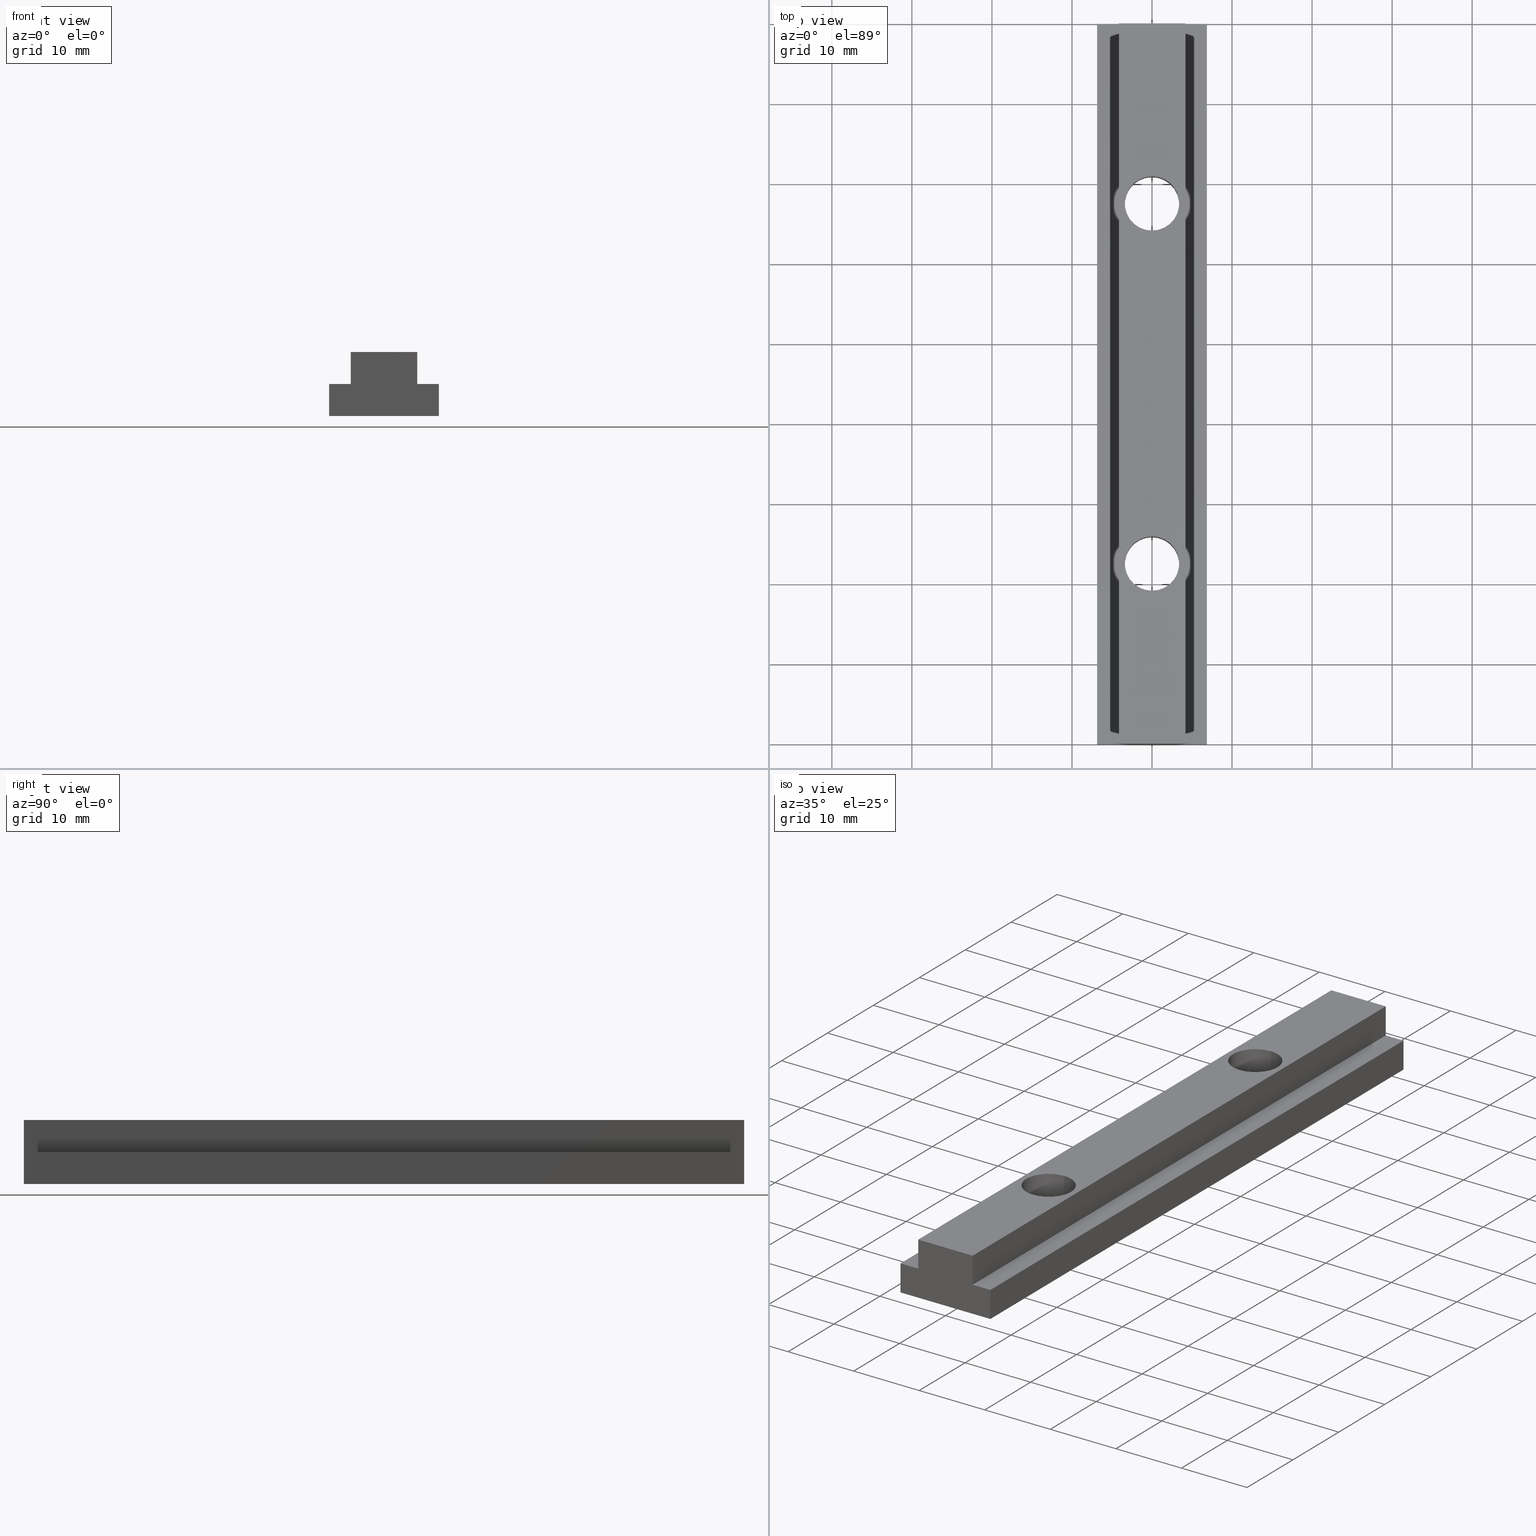
[diagram: canonical four-view strip — front | top / right | iso, engineering-drawing reading convention]
A machine part, canonical four-view strip (front | top / right | iso — engineering-drawing reading convention). The complete STEP part file that produces these views, byte-faithful:
ISO-10303-21;
HEADER;
/****************************************************************
 * Generated by software with PDE/Lib inside                    *
 * PDElib Version v4.4, created Mon 02/23/2004                  *
 * International Technegroup Inc. (www.iti-oh.com)              *
 ****************************************************************/
FILE_DESCRIPTION(('STEP AP203'),'2;1');
FILE_NAME('14.303.00.stp','2011-02-14T08:44:29',(''),(''),'2009.3.110','THINKDESIGN','');
FILE_SCHEMA(('CONFIG_CONTROL_DESIGN'));
ENDSEC;
DATA;
#2=CARTESIAN_POINT('',(0.0,22.500000000000004,8.000000009999994));
#3=DIRECTION('',(0.0,-6.123234E-017,-1.0));
#4=DIRECTION('',(1.0,0.0,0.0));
#5=AXIS2_PLACEMENT_3D('',#2,#3,#4);
#6=CYLINDRICAL_SURFACE('',#5,3.400000000000001);
#7=CARTESIAN_POINT('',(0.0,25.899999999999999,7.999999999999989));
#8=VERTEX_POINT('',#7);
#9=CARTESIAN_POINT('',(0.0,19.100000000000001,7.999999999999989));
#10=VERTEX_POINT('',#9);
#11=CARTESIAN_POINT('',(0.0,22.500000000000000,7.999999999999989));
#12=DIRECTION('',(0.0,6.123234E-017,1.0));
#13=DIRECTION('',(0.0,-1.0,6.123234E-017));
#14=AXIS2_PLACEMENT_3D('',#11,#12,#13);
#15=CIRCLE('',#14,3.400000000000001);
#16=EDGE_CURVE('',#8,#10,#15,.T.);
#17=ORIENTED_EDGE('',*,*,#16,.T.);
#18=CARTESIAN_POINT('',(0.0,19.100000000000001,-1.776357E-015));
#19=VERTEX_POINT('',#18);
#20=CARTESIAN_POINT('',(0.0,19.100000000000001,7.999999999999993));
#21=DIRECTION('',(0.0,0.0,-1.0));
#22=VECTOR('',#21,7.999999999999993);
#23=LINE('',#20,#22);
#24=EDGE_CURVE('',#10,#19,#23,.T.);
#25=ORIENTED_EDGE('',*,*,#24,.T.);
#26=CARTESIAN_POINT('',(0.0,25.899999999999999,-1.776357E-015));
#27=VERTEX_POINT('',#26);
#28=CARTESIAN_POINT('',(0.0,22.500000000000000,-1.776357E-015));
#29=DIRECTION('',(0.0,-6.123234E-017,-1.0));
#30=DIRECTION('',(0.0,1.0,-6.123234E-017));
#31=AXIS2_PLACEMENT_3D('',#28,#29,#30);
#32=CIRCLE('',#31,3.400000000000001);
#33=EDGE_CURVE('',#19,#27,#32,.T.);
#34=ORIENTED_EDGE('',*,*,#33,.T.);
#35=CARTESIAN_POINT('',(0.0,25.899999999999999,7.999999999999993));
#36=DIRECTION('',(0.0,0.0,-1.0));
#37=VECTOR('',#36,7.999999999999993);
#38=LINE('',#35,#37);
#39=EDGE_CURVE('',#8,#27,#38,.T.);
#40=ORIENTED_EDGE('',*,*,#39,.F.);
#41=EDGE_LOOP('',(#17,#25,#34,#40));
#42=FACE_OUTER_BOUND('',#41,.T.);
#43=ADVANCED_FACE('',(#42),#6,.F.);
#44=CARTESIAN_POINT('',(0.0,67.500000000000000,8.000000009999994));
#45=DIRECTION('',(0.0,-6.123234E-017,-1.0));
#46=DIRECTION('',(1.0,0.0,0.0));
#47=AXIS2_PLACEMENT_3D('',#44,#45,#46);
#48=CYLINDRICAL_SURFACE('',#47,3.400000000000001);
#49=CARTESIAN_POINT('',(0.0,70.900000000000006,7.999999999999986));
#50=VERTEX_POINT('',#49);
#51=CARTESIAN_POINT('',(0.0,64.100000000000023,7.999999999999986));
#52=VERTEX_POINT('',#51);
#53=CARTESIAN_POINT('',(0.0,67.500000000000000,7.999999999999986));
#54=DIRECTION('',(0.0,6.123234E-017,1.0));
#55=DIRECTION('',(0.0,-1.0,6.123234E-017));
#56=AXIS2_PLACEMENT_3D('',#53,#54,#55);
#57=CIRCLE('',#56,3.400000000000001);
#58=EDGE_CURVE('',#50,#52,#57,.T.);
#59=ORIENTED_EDGE('',*,*,#58,.T.);
#60=CARTESIAN_POINT('',(0.0,64.100000000000023,-3.552714E-015));
#61=VERTEX_POINT('',#60);
#62=CARTESIAN_POINT('',(0.0,64.100000000000023,7.999999999999989));
#63=DIRECTION('',(0.0,0.0,-1.0));
#64=VECTOR('',#63,7.999999999999993);
#65=LINE('',#62,#64);
#66=EDGE_CURVE('',#52,#61,#65,.T.);
#67=ORIENTED_EDGE('',*,*,#66,.T.);
#68=CARTESIAN_POINT('',(0.0,70.900000000000006,-3.552714E-015));
#69=VERTEX_POINT('',#68);
#70=CARTESIAN_POINT('',(0.0,67.500000000000000,-3.552714E-015));
#71=DIRECTION('',(0.0,-6.123234E-017,-1.0));
#72=DIRECTION('',(0.0,1.0,-6.123234E-017));
#73=AXIS2_PLACEMENT_3D('',#70,#71,#72);
#74=CIRCLE('',#73,3.400000000000001);
#75=EDGE_CURVE('',#61,#69,#74,.T.);
#76=ORIENTED_EDGE('',*,*,#75,.T.);
#77=CARTESIAN_POINT('',(0.0,70.900000000000006,7.999999999999989));
#78=DIRECTION('',(0.0,0.0,-1.0));
#79=VECTOR('',#78,7.999999999999993);
#80=LINE('',#77,#79);
#81=EDGE_CURVE('',#50,#69,#80,.T.);
#82=ORIENTED_EDGE('',*,*,#81,.F.);
#83=EDGE_LOOP('',(#59,#67,#76,#82));
#84=FACE_OUTER_BOUND('',#83,.T.);
#85=ADVANCED_FACE('',(#84),#48,.F.);
#86=CARTESIAN_POINT('',(-6.849999999999994,94.500000000000000,-0.200000000000005));
#87=DIRECTION('',(-1.0,0.0,0.0));
#88=DIRECTION('',(0.0,-1.0,0.0));
#89=AXIS2_PLACEMENT_3D('',#86,#87,#88);
#90=PLANE('',#89);
#91=CARTESIAN_POINT('',(-6.849999999999994,0.0,4.0));
#92=VERTEX_POINT('',#91);
#93=CARTESIAN_POINT('',(-6.849999999999994,0.0,0.0));
#94=VERTEX_POINT('',#93);
#95=CARTESIAN_POINT('',(-6.849999999999994,0.0,4.0));
#96=DIRECTION('',(0.0,0.0,-1.0));
#97=VECTOR('',#96,4.0);
#98=LINE('',#95,#97);
#99=EDGE_CURVE('',#92,#94,#98,.T.);
#100=ORIENTED_EDGE('',*,*,#99,.F.);
#101=CARTESIAN_POINT('',(-6.849999999999994,90.0,3.999999999999995));
#102=VERTEX_POINT('',#101);
#103=CARTESIAN_POINT('',(-6.849999999999994,90.0,3.999999999999995));
#104=DIRECTION('',(0.0,-1.0,0.0));
#105=VECTOR('',#104,90.0);
#106=LINE('',#103,#105);
#107=EDGE_CURVE('',#102,#92,#106,.T.);
#108=ORIENTED_EDGE('',*,*,#107,.F.);
#109=CARTESIAN_POINT('',(-6.849999999999994,90.0,-5.329071E-015));
#110=VERTEX_POINT('',#109);
#111=CARTESIAN_POINT('',(-6.849999999999994,90.0,3.999999999999995));
#112=DIRECTION('',(0.0,0.0,-1.0));
#113=VECTOR('',#112,4.0);
#114=LINE('',#111,#113);
#115=EDGE_CURVE('',#102,#110,#114,.T.);
#116=ORIENTED_EDGE('',*,*,#115,.T.);
#117=CARTESIAN_POINT('',(-6.849999999999994,90.0,-5.329071E-015));
#118=DIRECTION('',(0.0,-1.0,0.0));
#119=VECTOR('',#118,90.0);
#120=LINE('',#117,#119);
#121=EDGE_CURVE('',#110,#94,#120,.T.);
#122=ORIENTED_EDGE('',*,*,#121,.T.);
#123=EDGE_LOOP('',(#100,#108,#116,#122));
#124=FACE_OUTER_BOUND('',#123,.T.);
#125=ADVANCED_FACE('',(#124),#90,.T.);
#126=CARTESIAN_POINT('',(-7.534999999999997,-4.499999999999999,0.0));
#127=DIRECTION('',(0.0,0.0,-1.0));
#128=DIRECTION('',(0.0,1.0,0.0));
#129=AXIS2_PLACEMENT_3D('',#126,#127,#128);
#130=PLANE('',#129);
#131=CARTESIAN_POINT('',(6.849999999999998,0.0,0.0));
#132=VERTEX_POINT('',#131);
#133=CARTESIAN_POINT('',(-6.849999999999994,0.0,0.0));
#134=DIRECTION('',(1.0,0.0,0.0));
#135=VECTOR('',#134,13.699999999999996);
#136=LINE('',#133,#135);
#137=EDGE_CURVE('',#94,#132,#136,.T.);
#138=ORIENTED_EDGE('',*,*,#137,.F.);
#139=ORIENTED_EDGE('',*,*,#121,.F.);
#140=CARTESIAN_POINT('',(6.849999999999998,90.0,-5.329071E-015));
#141=VERTEX_POINT('',#140);
#142=CARTESIAN_POINT('',(-6.849999999999994,90.0,-5.329071E-015));
#143=DIRECTION('',(1.0,0.0,0.0));
#144=VECTOR('',#143,13.699999999999996);
#145=LINE('',#142,#144);
#146=EDGE_CURVE('',#110,#141,#145,.T.);
#147=ORIENTED_EDGE('',*,*,#146,.T.);
#148=CARTESIAN_POINT('',(6.849999999999998,90.0,-5.329071E-015));
#149=DIRECTION('',(0.0,-1.0,0.0));
#150=VECTOR('',#149,90.0);
#151=LINE('',#148,#150);
#152=EDGE_CURVE('',#141,#132,#151,.T.);
#153=ORIENTED_EDGE('',*,*,#152,.T.);
#154=EDGE_LOOP('',(#138,#139,#147,#153));
#155=FACE_OUTER_BOUND('',#154,.T.);
#156=CARTESIAN_POINT('',(0.0,67.500000000000000,-3.552714E-015));
#157=DIRECTION('',(0.0,-6.123234E-017,-1.0));
#158=DIRECTION('',(0.0,1.0,-6.123234E-017));
#159=AXIS2_PLACEMENT_3D('',#156,#157,#158);
#160=CIRCLE('',#159,3.400000000000001);
#161=EDGE_CURVE('',#69,#61,#160,.T.);
#162=ORIENTED_EDGE('',*,*,#161,.F.);
#163=ORIENTED_EDGE('',*,*,#75,.F.);
#164=EDGE_LOOP('',(#162,#163));
#165=FACE_BOUND('',#164,.T.);
#166=CARTESIAN_POINT('',(0.0,22.500000000000000,-1.776357E-015));
#167=DIRECTION('',(0.0,-6.123234E-017,-1.0));
#168=DIRECTION('',(0.0,1.0,-6.123234E-017));
#169=AXIS2_PLACEMENT_3D('',#166,#167,#168);
#170=CIRCLE('',#169,3.400000000000001);
#171=EDGE_CURVE('',#27,#19,#170,.T.);
#172=ORIENTED_EDGE('',*,*,#171,.F.);
#173=ORIENTED_EDGE('',*,*,#33,.F.);
#174=EDGE_LOOP('',(#172,#173));
#175=FACE_BOUND('',#174,.T.);
#176=ADVANCED_FACE('',(#155,#165,#175),#130,.T.);
#177=CARTESIAN_POINT('',(6.849999999999998,-4.499999999999999,-0.199999999999999));
#178=DIRECTION('',(1.0,0.0,0.0));
#179=DIRECTION('',(0.0,1.0,0.0));
#180=AXIS2_PLACEMENT_3D('',#177,#178,#179);
#181=PLANE('',#180);
#182=CARTESIAN_POINT('',(6.849999999999998,0.0,4.0));
#183=VERTEX_POINT('',#182);
#184=CARTESIAN_POINT('',(6.849999999999998,0.0,0.0));
#185=DIRECTION('',(0.0,0.0,1.0));
#186=VECTOR('',#185,4.0);
#187=LINE('',#184,#186);
#188=EDGE_CURVE('',#132,#183,#187,.T.);
#189=ORIENTED_EDGE('',*,*,#188,.F.);
#190=ORIENTED_EDGE('',*,*,#152,.F.);
#191=CARTESIAN_POINT('',(6.849999999999998,90.0,3.999999999999995));
#192=VERTEX_POINT('',#191);
#193=CARTESIAN_POINT('',(6.849999999999998,90.0,-5.329071E-015));
#194=DIRECTION('',(0.0,0.0,1.0));
#195=VECTOR('',#194,4.0);
#196=LINE('',#193,#195);
#197=EDGE_CURVE('',#141,#192,#196,.T.);
#198=ORIENTED_EDGE('',*,*,#197,.T.);
#199=CARTESIAN_POINT('',(6.849999999999998,90.0,3.999999999999995));
#200=DIRECTION('',(0.0,-1.0,0.0));
#201=VECTOR('',#200,90.0);
#202=LINE('',#199,#201);
#203=EDGE_CURVE('',#192,#183,#202,.T.);
#204=ORIENTED_EDGE('',*,*,#203,.T.);
#205=EDGE_LOOP('',(#189,#190,#198,#204));
#206=FACE_OUTER_BOUND('',#205,.T.);
#207=ADVANCED_FACE('',(#206),#181,.T.);
#208=CARTESIAN_POINT('',(4.015000000000001,94.500000000000000,3.999999999999995));
#209=DIRECTION('',(0.0,0.0,1.0));
#210=DIRECTION('',(0.0,-1.0,0.0));
#211=AXIS2_PLACEMENT_3D('',#208,#209,#210);
#212=PLANE('',#211);
#213=CARTESIAN_POINT('',(4.149999999999999,0.0,4.0));
#214=VERTEX_POINT('',#213);
#215=CARTESIAN_POINT('',(6.849999999999998,0.0,4.0));
#216=DIRECTION('',(-1.0,0.0,0.0));
#217=VECTOR('',#216,2.699999999999999);
#218=LINE('',#215,#217);
#219=EDGE_CURVE('',#183,#214,#218,.T.);
#220=ORIENTED_EDGE('',*,*,#219,.F.);
#221=ORIENTED_EDGE('',*,*,#203,.F.);
#222=CARTESIAN_POINT('',(4.149999999999999,90.0,3.999999999999995));
#223=VERTEX_POINT('',#222);
#224=CARTESIAN_POINT('',(6.849999999999998,90.0,3.999999999999995));
#225=DIRECTION('',(-1.0,0.0,0.0));
#226=VECTOR('',#225,2.699999999999999);
#227=LINE('',#224,#226);
#228=EDGE_CURVE('',#192,#223,#227,.T.);
#229=ORIENTED_EDGE('',*,*,#228,.T.);
#230=CARTESIAN_POINT('',(4.149999999999999,90.0,3.999999999999995));
#231=DIRECTION('',(0.0,-1.0,0.0));
#232=VECTOR('',#231,90.0);
#233=LINE('',#230,#232);
#234=EDGE_CURVE('',#223,#214,#233,.T.);
#235=ORIENTED_EDGE('',*,*,#234,.T.);
#236=EDGE_LOOP('',(#220,#221,#229,#235));
#237=FACE_OUTER_BOUND('',#236,.T.);
#238=ADVANCED_FACE('',(#237),#212,.T.);
#239=CARTESIAN_POINT('',(4.149999999999999,-4.499999999999999,3.800000000000001));
#240=DIRECTION('',(1.0,0.0,0.0));
#241=DIRECTION('',(0.0,1.0,0.0));
#242=AXIS2_PLACEMENT_3D('',#239,#240,#241);
#243=PLANE('',#242);
#244=CARTESIAN_POINT('',(4.149999999999999,1.776357E-015,8.0));
#245=VERTEX_POINT('',#244);
#246=CARTESIAN_POINT('',(4.149999999999999,0.0,4.0));
#247=DIRECTION('',(0.0,0.0,1.0));
#248=VECTOR('',#247,4.0);
#249=LINE('',#246,#248);
#250=EDGE_CURVE('',#214,#245,#249,.T.);
#251=ORIENTED_EDGE('',*,*,#250,.F.);
#252=ORIENTED_EDGE('',*,*,#234,.F.);
#253=CARTESIAN_POINT('',(4.149999999999999,90.0,7.999999999999993));
#254=VERTEX_POINT('',#253);
#255=CARTESIAN_POINT('',(4.149999999999999,90.0,3.999999999999995));
#256=DIRECTION('',(0.0,0.0,1.0));
#257=VECTOR('',#256,4.0);
#258=LINE('',#255,#257);
#259=EDGE_CURVE('',#223,#254,#258,.T.);
#260=ORIENTED_EDGE('',*,*,#259,.T.);
#261=CARTESIAN_POINT('',(4.149999999999999,90.0,7.999999999999993));
#262=DIRECTION('',(0.0,-1.0,0.0));
#263=VECTOR('',#262,90.0);
#264=LINE('',#261,#263);
#265=EDGE_CURVE('',#254,#245,#264,.T.);
#266=ORIENTED_EDGE('',*,*,#265,.T.);
#267=EDGE_LOOP('',(#251,#252,#260,#266));
#268=FACE_OUTER_BOUND('',#267,.T.);
#269=ADVANCED_FACE('',(#268),#243,.T.);
#270=CARTESIAN_POINT('',(-4.564999999999998,94.500000000000000,7.999999999999993));
#271=DIRECTION('',(0.0,0.0,1.0));
#272=DIRECTION('',(0.0,-1.0,0.0));
#273=AXIS2_PLACEMENT_3D('',#270,#271,#272);
#274=PLANE('',#273);
#275=CARTESIAN_POINT('',(-4.149999999999999,1.776357E-015,8.0));
#276=VERTEX_POINT('',#275);
#277=CARTESIAN_POINT('',(4.149999999999999,1.776357E-015,8.0));
#278=DIRECTION('',(-1.0,0.0,0.0));
#279=VECTOR('',#278,8.299999999999997);
#280=LINE('',#277,#279);
#281=EDGE_CURVE('',#245,#276,#280,.T.);
#282=ORIENTED_EDGE('',*,*,#281,.F.);
#283=ORIENTED_EDGE('',*,*,#265,.F.);
#284=CARTESIAN_POINT('',(-4.149999999999999,90.0,7.999999999999993));
#285=VERTEX_POINT('',#284);
#286=CARTESIAN_POINT('',(4.149999999999999,90.0,7.999999999999993));
#287=DIRECTION('',(-1.0,0.0,0.0));
#288=VECTOR('',#287,8.299999999999997);
#289=LINE('',#286,#288);
#290=EDGE_CURVE('',#254,#285,#289,.T.);
#291=ORIENTED_EDGE('',*,*,#290,.T.);
#292=CARTESIAN_POINT('',(-4.149999999999999,90.0,7.999999999999993));
#293=DIRECTION('',(0.0,-1.0,0.0));
#294=VECTOR('',#293,90.0);
#295=LINE('',#292,#294);
#296=EDGE_CURVE('',#285,#276,#295,.T.);
#297=ORIENTED_EDGE('',*,*,#296,.T.);
#298=EDGE_LOOP('',(#282,#283,#291,#297));
#299=FACE_OUTER_BOUND('',#298,.T.);
#300=ORIENTED_EDGE('',*,*,#58,.F.);
#301=CARTESIAN_POINT('',(0.0,67.500000000000000,7.999999999999986));
#302=DIRECTION('',(0.0,6.123234E-017,1.0));
#303=DIRECTION('',(0.0,-1.0,6.123234E-017));
#304=AXIS2_PLACEMENT_3D('',#301,#302,#303);
#305=CIRCLE('',#304,3.400000000000001);
#306=EDGE_CURVE('',#52,#50,#305,.T.);
#307=ORIENTED_EDGE('',*,*,#306,.F.);
#308=EDGE_LOOP('',(#300,#307));
#309=FACE_BOUND('',#308,.T.);
#310=ORIENTED_EDGE('',*,*,#16,.F.);
#311=CARTESIAN_POINT('',(0.0,22.500000000000000,7.999999999999989));
#312=DIRECTION('',(0.0,6.123234E-017,1.0));
#313=DIRECTION('',(0.0,-1.0,6.123234E-017));
#314=AXIS2_PLACEMENT_3D('',#311,#312,#313);
#315=CIRCLE('',#314,3.400000000000001);
#316=EDGE_CURVE('',#10,#8,#315,.T.);
#317=ORIENTED_EDGE('',*,*,#316,.F.);
#318=EDGE_LOOP('',(#310,#317));
#319=FACE_BOUND('',#318,.T.);
#320=ADVANCED_FACE('',(#299,#309,#319),#274,.T.);
#321=CARTESIAN_POINT('',(-4.149999999999999,94.500000000000000,3.799999999999995));
#322=DIRECTION('',(-1.0,0.0,0.0));
#323=DIRECTION('',(0.0,-1.0,0.0));
#324=AXIS2_PLACEMENT_3D('',#321,#322,#323);
#325=PLANE('',#324);
#326=CARTESIAN_POINT('',(-4.149999999999999,0.0,4.0));
#327=VERTEX_POINT('',#326);
#328=CARTESIAN_POINT('',(-4.149999999999999,1.776357E-015,8.0));
#329=DIRECTION('',(0.0,0.0,-1.0));
#330=VECTOR('',#329,4.0);
#331=LINE('',#328,#330);
#332=EDGE_CURVE('',#276,#327,#331,.T.);
#333=ORIENTED_EDGE('',*,*,#332,.F.);
#334=ORIENTED_EDGE('',*,*,#296,.F.);
#335=CARTESIAN_POINT('',(-4.149999999999999,90.0,3.999999999999995));
#336=VERTEX_POINT('',#335);
#337=CARTESIAN_POINT('',(-4.149999999999999,90.0,7.999999999999993));
#338=DIRECTION('',(0.0,0.0,-1.0));
#339=VECTOR('',#338,4.0);
#340=LINE('',#337,#339);
#341=EDGE_CURVE('',#285,#336,#340,.T.);
#342=ORIENTED_EDGE('',*,*,#341,.T.);
#343=CARTESIAN_POINT('',(-4.149999999999999,90.0,3.999999999999995));
#344=DIRECTION('',(0.0,-1.0,0.0));
#345=VECTOR('',#344,90.0);
#346=LINE('',#343,#345);
#347=EDGE_CURVE('',#336,#327,#346,.T.);
#348=ORIENTED_EDGE('',*,*,#347,.T.);
#349=EDGE_LOOP('',(#333,#334,#342,#348));
#350=FACE_OUTER_BOUND('',#349,.T.);
#351=ADVANCED_FACE('',(#350),#325,.T.);
#352=CARTESIAN_POINT('',(-6.984999999999992,94.500000000000000,3.999999999999995));
#353=DIRECTION('',(0.0,0.0,1.0));
#354=DIRECTION('',(0.0,-1.0,0.0));
#355=AXIS2_PLACEMENT_3D('',#352,#353,#354);
#356=PLANE('',#355);
#357=CARTESIAN_POINT('',(-4.149999999999999,0.0,4.0));
#358=DIRECTION('',(-1.0,0.0,0.0));
#359=VECTOR('',#358,2.699999999999996);
#360=LINE('',#357,#359);
#361=EDGE_CURVE('',#327,#92,#360,.T.);
#362=ORIENTED_EDGE('',*,*,#361,.F.);
#363=ORIENTED_EDGE('',*,*,#347,.F.);
#364=CARTESIAN_POINT('',(-4.149999999999999,90.0,3.999999999999995));
#365=DIRECTION('',(-1.0,0.0,0.0));
#366=VECTOR('',#365,2.699999999999996);
#367=LINE('',#364,#366);
#368=EDGE_CURVE('',#336,#102,#367,.T.);
#369=ORIENTED_EDGE('',*,*,#368,.T.);
#370=ORIENTED_EDGE('',*,*,#107,.T.);
#371=EDGE_LOOP('',(#362,#363,#369,#370));
#372=FACE_OUTER_BOUND('',#371,.T.);
#373=ADVANCED_FACE('',(#372),#356,.T.);
#374=CARTESIAN_POINT('',(-7.534999999999997,90.0,-0.400000000000006));
#375=DIRECTION('',(0.0,-1.0,0.0));
#376=DIRECTION('',(1.0,0.0,0.0));
#377=AXIS2_PLACEMENT_3D('',#374,#375,#376);
#378=PLANE('',#377);
#379=ORIENTED_EDGE('',*,*,#115,.F.);
#380=ORIENTED_EDGE('',*,*,#368,.F.);
#381=ORIENTED_EDGE('',*,*,#341,.F.);
#382=ORIENTED_EDGE('',*,*,#290,.F.);
#383=ORIENTED_EDGE('',*,*,#259,.F.);
#384=ORIENTED_EDGE('',*,*,#228,.F.);
#385=ORIENTED_EDGE('',*,*,#197,.F.);
#386=ORIENTED_EDGE('',*,*,#146,.F.);
#387=EDGE_LOOP('',(#379,#380,#381,#382,#383,#384,#385,#386));
#388=FACE_OUTER_BOUND('',#387,.T.);
#389=ADVANCED_FACE('',(#388),#378,.F.);
#390=CARTESIAN_POINT('',(-7.534999999999997,0.0,-0.400000000000000));
#391=DIRECTION('',(0.0,-1.0,0.0));
#392=DIRECTION('',(1.0,0.0,0.0));
#393=AXIS2_PLACEMENT_3D('',#390,#391,#392);
#394=PLANE('',#393);
#395=ORIENTED_EDGE('',*,*,#99,.T.);
#396=ORIENTED_EDGE('',*,*,#137,.T.);
#397=ORIENTED_EDGE('',*,*,#188,.T.);
#398=ORIENTED_EDGE('',*,*,#219,.T.);
#399=ORIENTED_EDGE('',*,*,#250,.T.);
#400=ORIENTED_EDGE('',*,*,#281,.T.);
#401=ORIENTED_EDGE('',*,*,#332,.T.);
#402=ORIENTED_EDGE('',*,*,#361,.T.);
#403=EDGE_LOOP('',(#395,#396,#397,#398,#399,#400,#401,#402));
#404=FACE_OUTER_BOUND('',#403,.T.);
#405=ADVANCED_FACE('',(#404),#394,.T.);
#406=CARTESIAN_POINT('',(0.0,67.500000000000000,8.000000009999994));
#407=DIRECTION('',(0.0,-6.123234E-017,-1.0));
#408=DIRECTION('',(-1.0,0.0,0.0));
#409=AXIS2_PLACEMENT_3D('',#406,#407,#408);
#410=CYLINDRICAL_SURFACE('',#409,3.400000000000001);
#411=ORIENTED_EDGE('',*,*,#66,.F.);
#412=ORIENTED_EDGE('',*,*,#306,.T.);
#413=ORIENTED_EDGE('',*,*,#81,.T.);
#414=ORIENTED_EDGE('',*,*,#161,.T.);
#415=EDGE_LOOP('',(#411,#412,#413,#414));
#416=FACE_OUTER_BOUND('',#415,.T.);
#417=ADVANCED_FACE('',(#416),#410,.F.);
#418=CARTESIAN_POINT('',(0.0,22.500000000000004,8.000000009999994));
#419=DIRECTION('',(0.0,-6.123234E-017,-1.0));
#420=DIRECTION('',(-1.0,0.0,0.0));
#421=AXIS2_PLACEMENT_3D('',#418,#419,#420);
#422=CYLINDRICAL_SURFACE('',#421,3.400000000000001);
#423=ORIENTED_EDGE('',*,*,#24,.F.);
#424=ORIENTED_EDGE('',*,*,#316,.T.);
#425=ORIENTED_EDGE('',*,*,#39,.T.);
#426=ORIENTED_EDGE('',*,*,#171,.T.);
#427=EDGE_LOOP('',(#423,#424,#425,#426));
#428=FACE_OUTER_BOUND('',#427,.T.);
#429=ADVANCED_FACE('',(#428),#422,.F.);
#430=CLOSED_SHELL('',(#43,#85,#125,#176,#207,#238,#269,#320,#351,#373,#389,#405,#417,#429));
#431=MANIFOLD_SOLID_BREP('Importato1',#430);
#437=(NAMED_UNIT(*)PLANE_ANGLE_UNIT()SI_UNIT($,.RADIAN.));
#438=DIMENSIONAL_EXPONENTS(0.0,0.0,0.0,0.0,0.0,0.0,0.0);
#439=PLANE_ANGLE_MEASURE_WITH_UNIT(PLANE_ANGLE_MEASURE(0.017453292500000),#437);
#443=(CONVERSION_BASED_UNIT('DEGREE',#439)NAMED_UNIT(#438)PLANE_ANGLE_UNIT());
#447=(NAMED_UNIT(*)SI_UNIT($,.STERADIAN.)SOLID_ANGLE_UNIT());
#451=(LENGTH_UNIT()NAMED_UNIT(*)SI_UNIT(.MILLI.,.METRE.));
#453=UNCERTAINTY_MEASURE_WITH_UNIT(LENGTH_MEASURE(0.001000000000000),#451,'DISTANCE_ACCURACY_VALUE','');
#455=(GEOMETRIC_REPRESENTATION_CONTEXT(3)GLOBAL_UNCERTAINTY_ASSIGNED_CONTEXT((#453))GLOBAL_UNIT_ASSIGNED_CONTEXT((#443,#447,#451))REPRESENTATION_CONTEXT('thinkdesign','2009.3.110'));
#456=ADVANCED_BREP_SHAPE_REPRESENTATION('',(#431),#455);
#457=APPLICATION_CONTEXT('configuration controlled 3D designs of mechanical parts and assemblies');
#458=APPLICATION_PROTOCOL_DEFINITION('International Standard','config_control_design',1995,#457);
#459=MECHANICAL_CONTEXT('None',#457,'mechanical');
#460=PRODUCT('None','None','None',(#459));
#461=PRODUCT_RELATED_PRODUCT_CATEGORY('detail',$,(#460));
#462=PRODUCT_CATEGORY('part',$);
#463=PRODUCT_CATEGORY_RELATIONSHIP('None','None',#462,#461);
#464=PERSON('PERSON1','None','None',$,$,$);
#465=ORGANIZATION('','None','None');
#466=PERSON_AND_ORGANIZATION(#464,#465);
#467=PERSON_AND_ORGANIZATION_ROLE('design_owner');
#468=CC_DESIGN_PERSON_AND_ORGANIZATION_ASSIGNMENT(#466,#467,(#460));
#469=PRODUCT_DEFINITION_FORMATION_WITH_SPECIFIED_SOURCE('None','None',#460,.NOT_KNOWN.);
#470=PERSON('PERSON2','None','None',$,$,$);
#471=ORGANIZATION('','None','None');
#472=PERSON_AND_ORGANIZATION(#470,#471);
#473=PERSON_AND_ORGANIZATION_ROLE('creator');
#474=CC_DESIGN_PERSON_AND_ORGANIZATION_ASSIGNMENT(#472,#473,(#469));
#475=PERSON('PERSON3','None','None',$,$,$);
#476=ORGANIZATION('','None','None');
#477=PERSON_AND_ORGANIZATION(#475,#476);
#478=PERSON_AND_ORGANIZATION_ROLE('part_supplier');
#479=CC_DESIGN_PERSON_AND_ORGANIZATION_ASSIGNMENT(#477,#478,(#469));
#480=APPROVAL_STATUS('approved');
#481=APPROVAL(#480,'None');
#482=PERSON('PERSON4','None','None',$,$,$);
#483=ORGANIZATION('','None','None');
#484=PERSON_AND_ORGANIZATION(#482,#483);
#485=APPROVAL_ROLE('None');
#486=APPROVAL_PERSON_ORGANIZATION(#484,#481,#485);
#487=CALENDAR_DATE(2011,14,2);
#488=COORDINATED_UNIVERSAL_TIME_OFFSET(0,0,.AHEAD.);
#489=LOCAL_TIME(8,44,29.0,#488);
#490=DATE_AND_TIME(#487,#489);
#491=APPROVAL_DATE_TIME(#490,#481);
#492=CC_DESIGN_APPROVAL(#481,(#469));
#493=SECURITY_CLASSIFICATION_LEVEL('unclassified');
#494=SECURITY_CLASSIFICATION('None','None',#493);
#495=CC_DESIGN_SECURITY_CLASSIFICATION(#494,(#469));
#496=APPROVAL_STATUS('approved');
#497=APPROVAL(#496,'None');
#498=PERSON('PERSON5','None','None',$,$,$);
#499=ORGANIZATION('','None','None');
#500=PERSON_AND_ORGANIZATION(#498,#499);
#501=APPROVAL_ROLE('None');
#502=APPROVAL_PERSON_ORGANIZATION(#500,#497,#501);
#503=CALENDAR_DATE(2011,14,2);
#504=COORDINATED_UNIVERSAL_TIME_OFFSET(0,0,.AHEAD.);
#505=LOCAL_TIME(8,44,29.0,#504);
#506=DATE_AND_TIME(#503,#505);
#507=APPROVAL_DATE_TIME(#506,#497);
#508=CC_DESIGN_APPROVAL(#497,(#494));
#509=PERSON('PERSON6','None','None',$,$,$);
#510=ORGANIZATION('','None','None');
#511=PERSON_AND_ORGANIZATION(#509,#510);
#512=PERSON_AND_ORGANIZATION_ROLE('classification_officer');
#513=CC_DESIGN_PERSON_AND_ORGANIZATION_ASSIGNMENT(#511,#512,(#494));
#514=DATE_TIME_ROLE('classification_date');
#515=CALENDAR_DATE(2011,14,2);
#516=COORDINATED_UNIVERSAL_TIME_OFFSET(0,0,.AHEAD.);
#517=LOCAL_TIME(8,44,29.0,#516);
#518=DATE_AND_TIME(#515,#517);
#519=CC_DESIGN_DATE_AND_TIME_ASSIGNMENT(#518,#514,(#494));
#520=DESIGN_CONTEXT('part definition',#457,'design');
#521=DOCUMENT_TYPE('cad_filename');
#522=DOCUMENT('None','None','None',#521);
#523=PRODUCT_DEFINITION_WITH_ASSOCIATED_DOCUMENTS('None','None',#469,#520,(#522));
#524=PERSON('PERSON7','None','None',$,$,$);
#525=ORGANIZATION('','None','None');
#526=PERSON_AND_ORGANIZATION(#524,#525);
#527=PERSON_AND_ORGANIZATION_ROLE('creator');
#528=CC_DESIGN_PERSON_AND_ORGANIZATION_ASSIGNMENT(#526,#527,(#523));
#529=DATE_TIME_ROLE('creation_date');
#530=CALENDAR_DATE(2011,14,2);
#531=COORDINATED_UNIVERSAL_TIME_OFFSET(0,0,.AHEAD.);
#532=LOCAL_TIME(8,44,29.0,#531);
#533=DATE_AND_TIME(#530,#532);
#534=CC_DESIGN_DATE_AND_TIME_ASSIGNMENT(#533,#529,(#523));
#535=APPROVAL_STATUS('approved');
#536=APPROVAL(#535,'None');
#537=PERSON('PERSON8','None','None',$,$,$);
#538=ORGANIZATION('','None','None');
#539=PERSON_AND_ORGANIZATION(#537,#538);
#540=APPROVAL_ROLE('None');
#541=APPROVAL_PERSON_ORGANIZATION(#539,#536,#540);
#542=CALENDAR_DATE(2011,14,2);
#543=COORDINATED_UNIVERSAL_TIME_OFFSET(0,0,.AHEAD.);
#544=LOCAL_TIME(8,44,29.0,#543);
#545=DATE_AND_TIME(#542,#544);
#546=APPROVAL_DATE_TIME(#545,#536);
#547=CC_DESIGN_APPROVAL(#536,(#523));
#548=PRODUCT_DEFINITION_SHAPE('None','None',#523);
#549=SHAPE_DEFINITION_REPRESENTATION(#548,#456);
#550=DIMENSIONAL_EXPONENTS(0.0,0.0,0.0,0.0,0.0,0.0,0.0);
#551=DIMENSIONAL_EXPONENTS(1.0,0.0,0.0,0.0,0.0,0.0,0.0);
ENDSEC;
END-ISO-10303-21;
